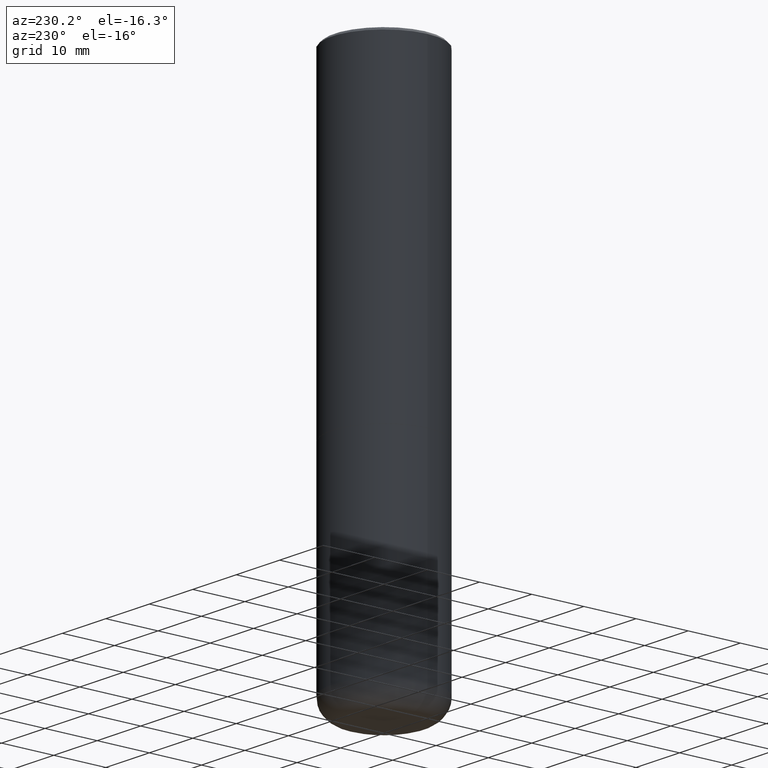
[diagram: clean part render]
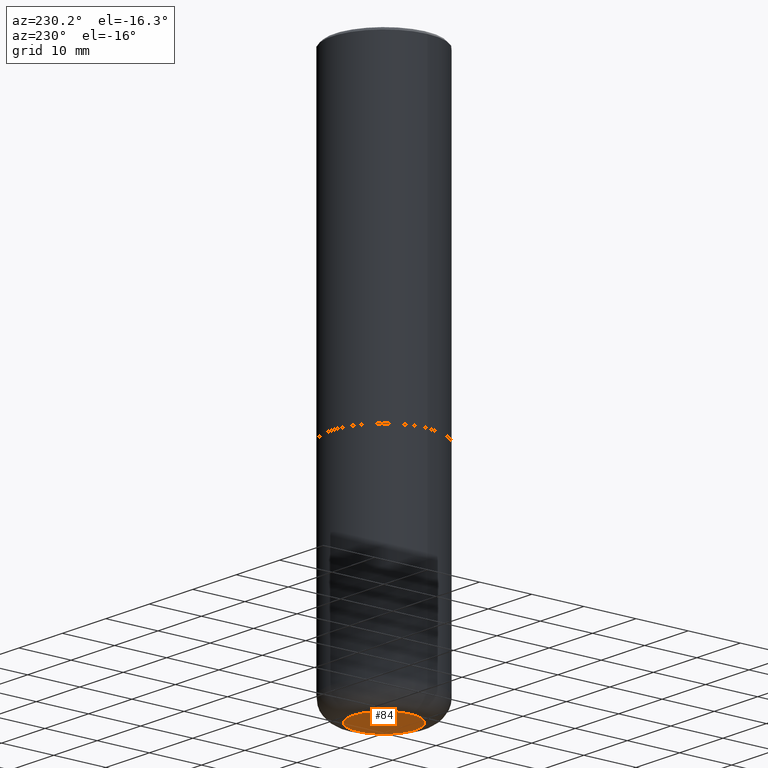
[diagram: same view with one face highlighted and labeled with its STEP entity id]
A machine part, auxiliary view. The second image highlights one B-rep face of the part: STEP entity #84.
In plain terms, the highlighted planar face has unit normal (0, -0, -1).
Its self-contained STEP definition (entity closure, byte-faithful):
#31 = ORIENTED_EDGE ( 'NONE', *, *, #300, .F. ) ;
#44 = DIRECTION ( 'NONE',  ( 2.438088387897960049E-29, -3.491481338843145188E-15, -1.000000000000000000 ) ) ;
#53 = CARTESIAN_POINT ( 'NONE',  ( 1.001297202692504215E-28, -1.429587034189326149E-14, -4.094500000000000028 ) ) ;
#61 = ORIENTED_EDGE ( 'NONE', *, *, #397, .F. ) ;
#62 = DIRECTION ( 'NONE',  ( -2.445468806185136597E-29, 3.491481338843145583E-15, 1.000000000000000000 ) ) ;
#84 = ADVANCED_FACE ( 'NONE', ( #243 ), #331, .T. ) ;
#96 = AXIS2_PLACEMENT_3D ( 'NONE', #106, #316, #99 ) ;
#99 = DIRECTION ( 'NONE',  ( 1.000000000000000000, -6.982962677686270655E-15, 0.000000000000000000 ) ) ;
#103 = EDGE_LOOP ( 'NONE', ( #61, #31 ) ) ;
#104 = VERTEX_POINT ( 'NONE', #158 ) ;
#106 = CARTESIAN_POINT ( 'NONE',  ( 1.001297202692504215E-28, -1.429587034189326149E-14, -4.094500000000000028 ) ) ;
#129 = CIRCLE ( 'NONE', #278, 0.2362000000000000766 ) ;
#143 = CIRCLE ( 'NONE', #96, 0.2362000000000000766 ) ;
#156 = DIRECTION ( 'NONE',  ( 1.000000000000000000, -6.982962677686270655E-15, 0.000000000000000000 ) ) ;
#158 = CARTESIAN_POINT ( 'NONE',  ( -0.2362000000000000766, -1.178306184018292647E-14, -4.094500000000000028 ) ) ;
#196 = AXIS2_PLACEMENT_3D ( 'NONE', #53, #44, #399 ) ;
#243 = FACE_OUTER_BOUND ( 'NONE', #103, .T. ) ;
#278 = AXIS2_PLACEMENT_3D ( 'NONE', #305, #62, #156 ) ;
#300 = EDGE_CURVE ( 'NONE', #104, #396, #143, .T. ) ;
#305 = CARTESIAN_POINT ( 'NONE',  ( 1.001297202692504215E-28, -1.429587034189326149E-14, -4.094500000000000028 ) ) ;
#316 = DIRECTION ( 'NONE',  ( -2.445468806185136597E-29, 3.491481338843145583E-15, 1.000000000000000000 ) ) ;
#331 = PLANE ( 'NONE',  #196 ) ;
#396 = VERTEX_POINT ( 'NONE', #405 ) ;
#397 = EDGE_CURVE ( 'NONE', #396, #104, #129, .T. ) ;
#399 = DIRECTION ( 'NONE',  ( -1.000000000000000000, 6.982962677686265922E-15, -4.876176775795935793E-29 ) ) ;
#405 = CARTESIAN_POINT ( 'NONE',  ( 0.2362000000000000766, -1.594524612636275802E-14, -4.094500000000000028 ) ) ;